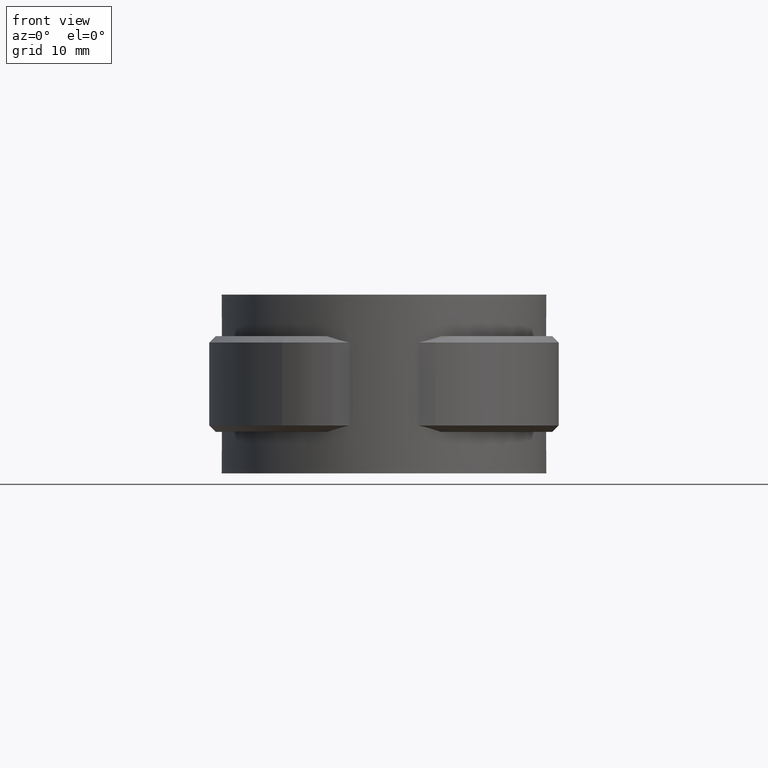
[diagram: clean part render]
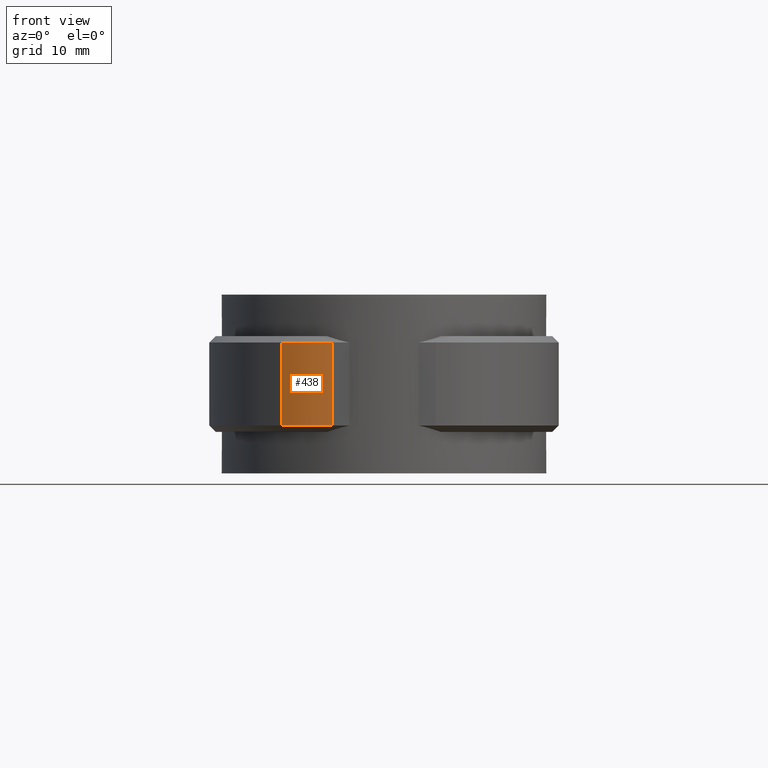
[diagram: same view with one face highlighted and labeled with its STEP entity id]
A machine part, front view. The second image highlights one B-rep face of the part: STEP entity #438.
In plain terms, the highlighted cylindrical surface (partial cylindrical patch) has radius 13.6 mm, axis along (0, 0, -1).
Its self-contained STEP definition (entity closure, byte-faithful):
#438 = ADVANCED_FACE( '', ( #800 ), #801, .T. );
#800 = FACE_OUTER_BOUND( '', #1646, .T. );
#801 = CYLINDRICAL_SURFACE( '', #1647, 13.6000000000000 );
#1646 = EDGE_LOOP( '', ( #4231, #4232, #4233, #4234 ) );
#1647 = AXIS2_PLACEMENT_3D( '', #4235, #4236, #4237 );
#4231 = ORIENTED_EDGE( '', *, *, #5264, .F. );
#4232 = ORIENTED_EDGE( '', *, *, #5243, .T. );
#4233 = ORIENTED_EDGE( '', *, *, #5227, .T. );
#4234 = ORIENTED_EDGE( '', *, *, #5203, .T. );
#4235 = CARTESIAN_POINT( '', ( -8.05583173856056, -11.2600000000000, -20.0000000000000 ) );
#4236 = DIRECTION( '', ( 0.000000000000000, 0.000000000000000, -1.00000000000000 ) );
#4237 = DIRECTION( '', ( 0.213196982952784, 0.977009235606210, 0.000000000000000 ) );
#5203 = EDGE_CURVE( '', #5910, #5998, #6000, .T. );
#5227 = EDGE_CURVE( '', #6044, #5910, #6045, .T. );
#5243 = EDGE_CURVE( '', #6067, #6044, #6068, .F. );
#5264 = EDGE_CURVE( '', #6067, #5998, #6096, .T. );
#5910 = VERTEX_POINT( '', #9055 );
#5998 = VERTEX_POINT( '', #9497 );
#6000 = CIRCLE( '', #9500, 13.6000000000000 );
#6044 = VERTEX_POINT( '', #9565 );
#6045 = LINE( '', #9566, #9567 );
#6067 = VERTEX_POINT( '', #9610 );
#6068 = CIRCLE( '', #9611, 13.6000000000000 );
#6096 = LINE( '', #9648, #9649 );
#9055 = CARTESIAN_POINT( '', ( -8.05583173856056, -24.8600000000000, -6.00000000000000 ) );
#9497 = CARTESIAN_POINT( '', ( -15.9691081303572, -22.3207439508848, -6.00000000000000 ) );
#9500 = AXIS2_PLACEMENT_3D( '', #10429, #10430, #10431 );
#9565 = CARTESIAN_POINT( '', ( -8.05583173856056, -24.8600000000000, -19.0000000000000 ) );
#9566 = CARTESIAN_POINT( '', ( -8.05583173856056, -24.8600000000000, -20.0000000000000 ) );
#9567 = VECTOR( '', #10474, 1000.00000000000 );
#9610 = CARTESIAN_POINT( '', ( -15.9691081303572, -22.3207439508848, -19.0000000000000 ) );
#9611 = AXIS2_PLACEMENT_3D( '', #10487, #10488, #10489 );
#9648 = CARTESIAN_POINT( '', ( -15.9691081303572, -22.3207439508848, -20.0000000000000 ) );
#9649 = VECTOR( '', #10532, 1000.00000000000 );
#10429 = CARTESIAN_POINT( '', ( -8.05583173856056, -11.2600000000000, -6.00000000000000 ) );
#10430 = DIRECTION( '', ( 0.000000000000000, 0.000000000000000, -1.00000000000000 ) );
#10431 = DIRECTION( '', ( -1.00000000000000, 0.000000000000000, 0.000000000000000 ) );
#10474 = DIRECTION( '', ( 0.000000000000000, 0.000000000000000, 1.00000000000000 ) );
#10487 = CARTESIAN_POINT( '', ( -8.05583173856056, -11.2600000000000, -19.0000000000000 ) );
#10488 = DIRECTION( '', ( 0.000000000000000, 0.000000000000000, -1.00000000000000 ) );
#10489 = DIRECTION( '', ( -1.00000000000000, 0.000000000000000, 0.000000000000000 ) );
#10532 = DIRECTION( '', ( 0.000000000000000, 0.000000000000000, 1.00000000000000 ) );